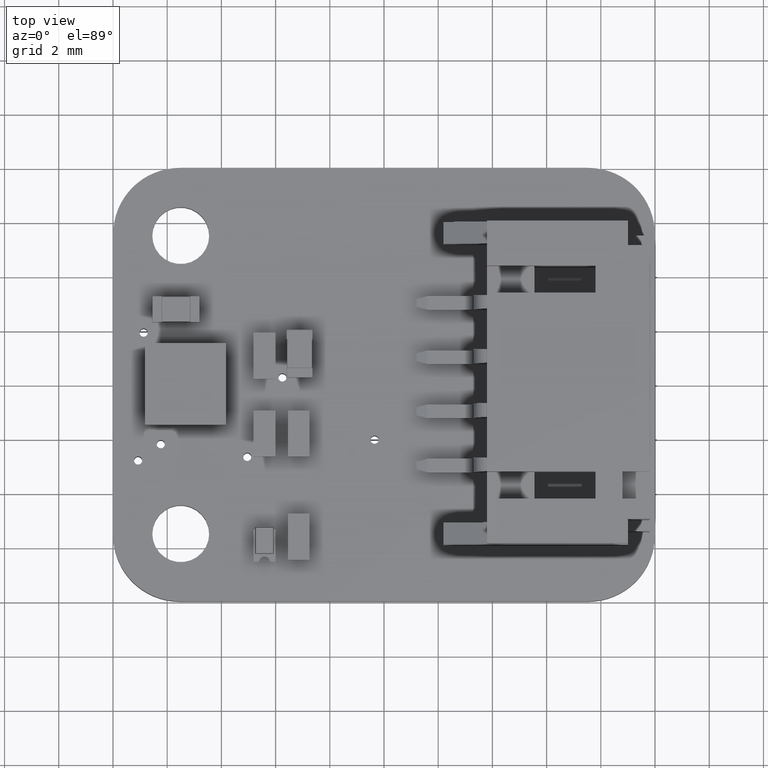
[diagram: clean part render]
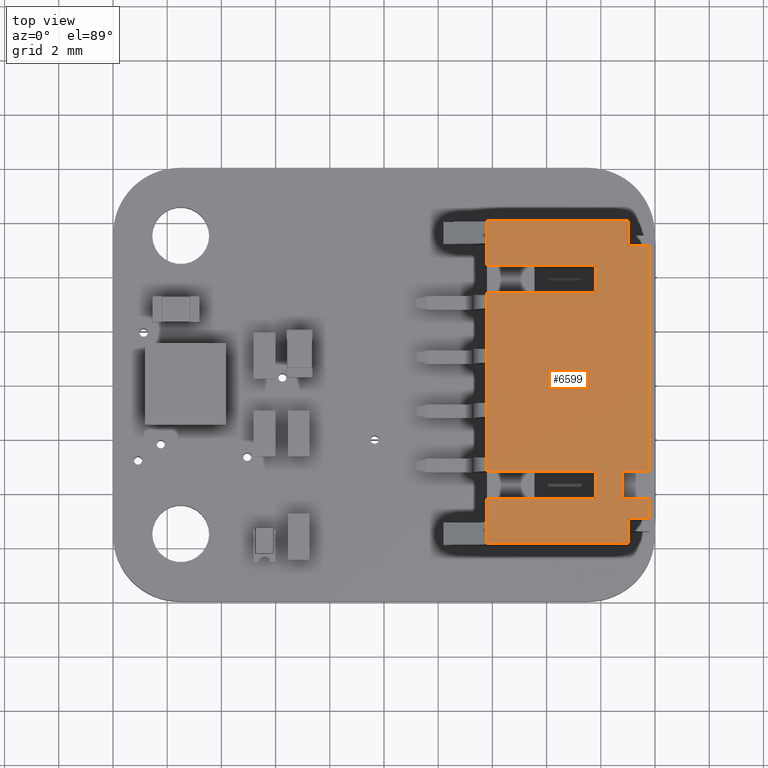
[diagram: same view with one face highlighted and labeled with its STEP entity id]
A machine part, top view. The second image highlights one B-rep face of the part: STEP entity #6599.
In plain terms, the highlighted planar face has unit normal (0, -0, -1).
Its self-contained STEP definition (entity closure, byte-faithful):
#6599 = ADVANCED_FACE('',(#6600),#6762,.F.);
#6600 = FACE_BOUND('',#6601,.T.);
#6601 = EDGE_LOOP('',(#6602,#6612,#6620,#6628,#6636,#6644,#6652,#6660,
    #6668,#6676,#6684,#6692,#6700,#6708,#6716,#6724,#6732,#6740,#6748,
    #6756));
#6602 = ORIENTED_EDGE('',*,*,#6603,.F.);
#6603 = EDGE_CURVE('',#6604,#6606,#6608,.T.);
#6604 = VERTEX_POINT('',#6605);
#6605 = CARTESIAN_POINT('',(7.049999999999,5.5,-4.857225732735E-14));
#6606 = VERTEX_POINT('',#6607);
#6607 = CARTESIAN_POINT('',(-1.3,5.5,-7.979727989493E-14));
#6608 = LINE('',#6609,#6610);
#6609 = CARTESIAN_POINT('',(-3.95,5.5,-7.979727989493E-14));
#6610 = VECTOR('',#6611,1.);
#6611 = DIRECTION('',(-1.,5.374889246194E-17,-5.629900911267E-31));
#6612 = ORIENTED_EDGE('',*,*,#6613,.F.);
#6613 = EDGE_CURVE('',#6614,#6604,#6616,.T.);
#6614 = VERTEX_POINT('',#6615);
#6615 = CARTESIAN_POINT('',(7.049999999999,5.5,-0.8));
#6616 = LINE('',#6617,#6618);
#6617 = CARTESIAN_POINT('',(7.049999999999,5.5,2.081668171172E-14));
#6618 = VECTOR('',#6619,1.);
#6619 = DIRECTION('',(-7.281636885445E-15,-0.,1.));
#6620 = ORIENTED_EDGE('',*,*,#6621,.T.);
#6621 = EDGE_CURVE('',#6614,#6622,#6624,.T.);
#6622 = VERTEX_POINT('',#6623);
#6623 = CARTESIAN_POINT('',(7.949999999999,5.5,-0.8));
#6624 = LINE('',#6625,#6626);
#6625 = CARTESIAN_POINT('',(7.949999999999,5.5,-0.8));
#6626 = VECTOR('',#6627,1.);
#6627 = DIRECTION('',(1.,5.374889246194E-17,-5.629900911267E-31));
#6628 = ORIENTED_EDGE('',*,*,#6629,.F.);
#6629 = EDGE_CURVE('',#6630,#6622,#6632,.T.);
#6630 = VERTEX_POINT('',#6631);
#6631 = CARTESIAN_POINT('',(7.949999999999,5.5,-6.));
#6632 = LINE('',#6633,#6634);
#6633 = CARTESIAN_POINT('',(7.949999999999,5.5,-3.122502256758E-14));
#6634 = VECTOR('',#6635,1.);
#6635 = DIRECTION('',(-7.395763429917E-15,-0.,1.));
#6636 = ORIENTED_EDGE('',*,*,#6637,.F.);
#6637 = EDGE_CURVE('',#6638,#6630,#6640,.T.);
#6638 = VERTEX_POINT('',#6639);
#6639 = CARTESIAN_POINT('',(6.299999999999,5.5,-6.));
#6640 = LINE('',#6641,#6642);
#6641 = CARTESIAN_POINT('',(7.949999999999,5.5,-6.));
#6642 = VECTOR('',#6643,1.);
#6643 = DIRECTION('',(1.,7.553458536736E-29,7.281636885445E-15));
#6644 = ORIENTED_EDGE('',*,*,#6645,.T.);
#6645 = EDGE_CURVE('',#6638,#6646,#6648,.T.);
#6646 = VERTEX_POINT('',#6647);
#6647 = CARTESIAN_POINT('',(6.299999999999,5.5,-2.));
#6648 = LINE('',#6649,#6650);
#6649 = CARTESIAN_POINT('',(6.299999999999,5.5,1.040834085586E-14));
#6650 = VECTOR('',#6651,1.);
#6651 = DIRECTION('',(-7.281636885445E-15,-0.,1.));
#6652 = ORIENTED_EDGE('',*,*,#6653,.T.);
#6653 = EDGE_CURVE('',#6646,#6654,#6656,.T.);
#6654 = VERTEX_POINT('',#6655);
#6655 = CARTESIAN_POINT('',(5.299999999999,5.5,-2.));
#6656 = LINE('',#6657,#6658);
#6657 = CARTESIAN_POINT('',(7.949999999999,5.5,-2.));
#6658 = VECTOR('',#6659,1.);
#6659 = DIRECTION('',(-1.,-5.374889246194E-17,5.629900911267E-31));
#6660 = ORIENTED_EDGE('',*,*,#6661,.T.);
#6661 = EDGE_CURVE('',#6654,#6662,#6664,.T.);
#6662 = VERTEX_POINT('',#6663);
#6663 = CARTESIAN_POINT('',(5.299999999999,5.5,-6.));
#6664 = LINE('',#6665,#6666);
#6665 = CARTESIAN_POINT('',(5.299999999999,5.5,-7.6));
#6666 = VECTOR('',#6667,1.);
#6667 = DIRECTION('',(-0.,-1.047445008333E-14,-1.));
#6668 = ORIENTED_EDGE('',*,*,#6669,.T.);
#6669 = EDGE_CURVE('',#6662,#6670,#6672,.T.);
#6670 = VERTEX_POINT('',#6671);
#6671 = CARTESIAN_POINT('',(-1.3,5.5,-6.));
#6672 = LINE('',#6673,#6674);
#6673 = CARTESIAN_POINT('',(-3.95,5.5,-6.));
#6674 = VECTOR('',#6675,1.);
#6675 = DIRECTION('',(-1.,7.553458536736E-29,7.281636885445E-15));
#6676 = ORIENTED_EDGE('',*,*,#6677,.F.);
#6677 = EDGE_CURVE('',#6678,#6670,#6680,.T.);
#6678 = VERTEX_POINT('',#6679);
#6679 = CARTESIAN_POINT('',(-1.3,5.5,-2.));
#6680 = LINE('',#6681,#6682);
#6681 = CARTESIAN_POINT('',(-1.3,5.5,-7.6));
#6682 = VECTOR('',#6683,1.);
#6683 = DIRECTION('',(0.,-1.047445008333E-14,-1.));
#6684 = ORIENTED_EDGE('',*,*,#6685,.F.);
#6685 = EDGE_CURVE('',#6686,#6678,#6688,.T.);
#6686 = VERTEX_POINT('',#6687);
#6687 = CARTESIAN_POINT('',(-2.3,5.5,-2.));
#6688 = LINE('',#6689,#6690);
#6689 = CARTESIAN_POINT('',(-3.95,5.5,-2.));
#6690 = VECTOR('',#6691,1.);
#6691 = DIRECTION('',(1.,-5.374889246194E-17,5.629900911267E-31));
#6692 = ORIENTED_EDGE('',*,*,#6693,.F.);
#6693 = EDGE_CURVE('',#6694,#6686,#6696,.T.);
#6694 = VERTEX_POINT('',#6695);
#6695 = CARTESIAN_POINT('',(-2.3,5.5,-6.));
#6696 = LINE('',#6697,#6698);
#6697 = CARTESIAN_POINT('',(-2.3,5.5,1.040834085586E-14));
#6698 = VECTOR('',#6699,1.);
#6699 = DIRECTION('',(7.281636885445E-15,-0.,1.));
#6700 = ORIENTED_EDGE('',*,*,#6701,.T.);
#6701 = EDGE_CURVE('',#6694,#6702,#6704,.T.);
#6702 = VERTEX_POINT('',#6703);
#6703 = CARTESIAN_POINT('',(-3.95,5.5,-6.));
#6704 = LINE('',#6705,#6706);
#6705 = CARTESIAN_POINT('',(-3.95,5.5,-6.));
#6706 = VECTOR('',#6707,1.);
#6707 = DIRECTION('',(-1.,7.553458536736E-29,7.281636885445E-15));
#6708 = ORIENTED_EDGE('',*,*,#6709,.T.);
#6709 = EDGE_CURVE('',#6702,#6710,#6712,.T.);
#6710 = VERTEX_POINT('',#6711);
#6711 = CARTESIAN_POINT('',(-3.95,5.5,-0.8));
#6712 = LINE('',#6713,#6714);
#6713 = CARTESIAN_POINT('',(-3.95,5.5,-3.122502256758E-14));
#6714 = VECTOR('',#6715,1.);
#6715 = DIRECTION('',(7.395763429917E-15,-0.,1.));
#6716 = ORIENTED_EDGE('',*,*,#6717,.F.);
#6717 = EDGE_CURVE('',#6718,#6710,#6720,.T.);
#6718 = VERTEX_POINT('',#6719);
#6719 = CARTESIAN_POINT('',(-3.05,5.5,-0.8));
#6720 = LINE('',#6721,#6722);
#6721 = CARTESIAN_POINT('',(-3.95,5.5,-0.8));
#6722 = VECTOR('',#6723,1.);
#6723 = DIRECTION('',(-1.,5.374889246194E-17,-5.629900911267E-31));
#6724 = ORIENTED_EDGE('',*,*,#6725,.T.);
#6725 = EDGE_CURVE('',#6718,#6726,#6728,.T.);
#6726 = VERTEX_POINT('',#6727);
#6727 = CARTESIAN_POINT('',(-3.05,5.5,-4.857225732735E-14));
#6728 = LINE('',#6729,#6730);
#6729 = CARTESIAN_POINT('',(-3.05,5.5,2.081668171172E-14));
#6730 = VECTOR('',#6731,1.);
#6731 = DIRECTION('',(7.281636885445E-15,-0.,1.));
#6732 = ORIENTED_EDGE('',*,*,#6733,.F.);
#6733 = EDGE_CURVE('',#6734,#6726,#6736,.T.);
#6734 = VERTEX_POINT('',#6735);
#6735 = CARTESIAN_POINT('',(-2.3,5.5,-6.938893903907E-14));
#6736 = LINE('',#6737,#6738);
#6737 = CARTESIAN_POINT('',(-3.95,5.5,-7.979727989493E-14));
#6738 = VECTOR('',#6739,1.);
#6739 = DIRECTION('',(-1.,5.374889246194E-17,-5.629900911267E-31));
#6740 = ORIENTED_EDGE('',*,*,#6741,.F.);
#6741 = EDGE_CURVE('',#6742,#6734,#6744,.T.);
#6742 = VERTEX_POINT('',#6743);
#6743 = CARTESIAN_POINT('',(-2.3,5.5,-1.));
#6744 = LINE('',#6745,#6746);
#6745 = CARTESIAN_POINT('',(-2.3,5.5,-6.938893903907E-14));
#6746 = VECTOR('',#6747,1.);
#6747 = DIRECTION('',(-8.673617379884E-16,1.040834085586E-14,1.));
#6748 = ORIENTED_EDGE('',*,*,#6749,.F.);
#6749 = EDGE_CURVE('',#6750,#6742,#6752,.T.);
#6750 = VERTEX_POINT('',#6751);
#6751 = CARTESIAN_POINT('',(-1.3,5.5,-1.));
#6752 = LINE('',#6753,#6754);
#6753 = CARTESIAN_POINT('',(-2.3,5.5,-1.));
#6754 = VECTOR('',#6755,1.);
#6755 = DIRECTION('',(-1.,-0.,-0.));
#6756 = ORIENTED_EDGE('',*,*,#6757,.F.);
#6757 = EDGE_CURVE('',#6606,#6750,#6758,.T.);
#6758 = LINE('',#6759,#6760);
#6759 = CARTESIAN_POINT('',(-1.3,5.5,-6.938893903907E-14));
#6760 = VECTOR('',#6761,1.);
#6761 = DIRECTION('',(0.,-1.040834085586E-14,-1.));
#6762 = PLANE('',#6763);
#6763 = AXIS2_PLACEMENT_3D('',#6764,#6765,#6766);
#6764 = CARTESIAN_POINT('',(-3.95,5.5,-7.6));
#6765 = DIRECTION('',(-5.374889246194E-17,-1.,1.047445008333E-14));
#6766 = DIRECTION('',(0.,-1.047445008333E-14,-1.));